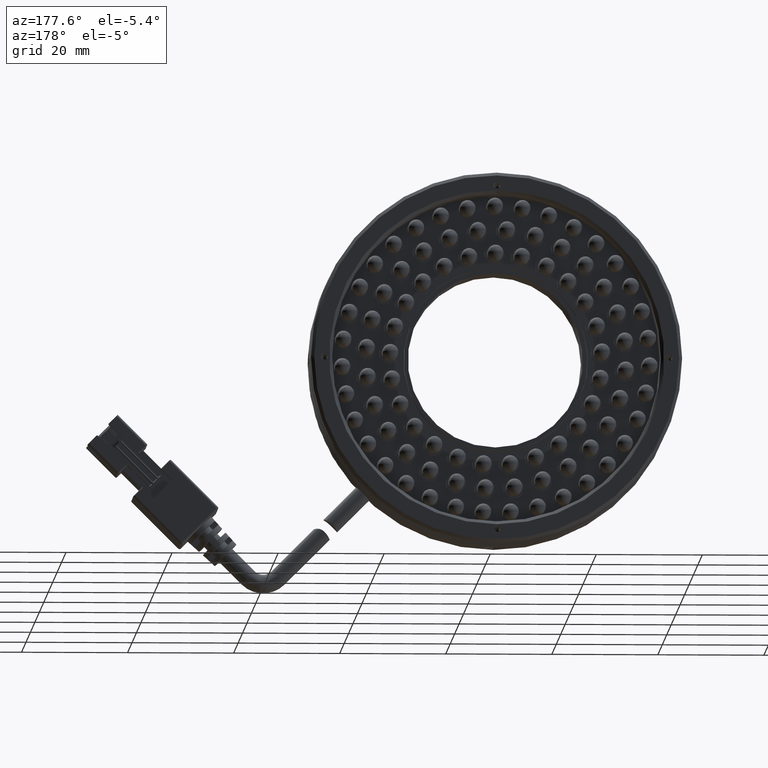
[diagram: clean part render]
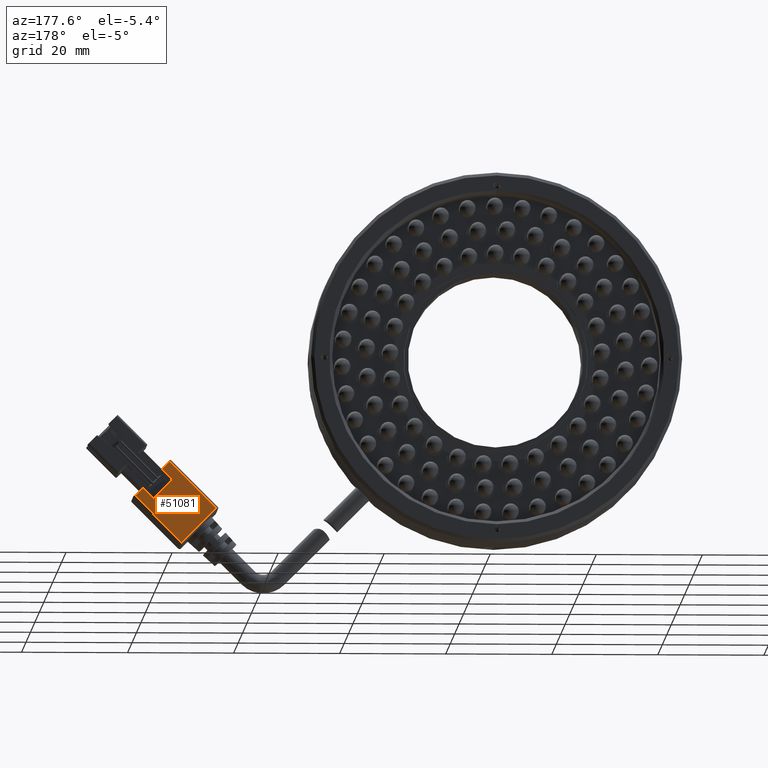
[diagram: same view with one face highlighted and labeled with its STEP entity id]
A machine part, auxiliary view. The second image highlights one B-rep face of the part: STEP entity #51081.
In plain terms, the highlighted planar face has unit normal (0, -1, -0).
Its self-contained STEP definition (entity closure, byte-faithful):
#382 = LINE ( 'NONE', #18112, #33420 ) ;
#582 = VERTEX_POINT ( 'NONE', #19854 ) ;
#726 = CARTESIAN_POINT ( 'NONE',  ( 36.52443995715705700, 3.220185881597989600, -19.02117241391842500 ) ) ;
#1010 = DIRECTION ( 'NONE',  ( 0.7071067811865441300, 7.979727989493312600E-017, -0.7071067811865510100 ) ) ;
#1335 = VECTOR ( 'NONE', #60427, 1000.000000000000000 ) ;
#2051 = VERTEX_POINT ( 'NONE', #73213 ) ;
#8024 = CARTESIAN_POINT ( 'NONE',  ( 41.54489810358152400, 3.220185881597990500, -24.04163056034294900 ) ) ;
#8418 = ORIENTED_EDGE ( 'NONE', *, *, #39313, .F. ) ;
#9503 = VECTOR ( 'NONE', #47048, 1000.000000000000000 ) ;
#10801 = CARTESIAN_POINT ( 'NONE',  ( 36.38301860091974000, 3.220185881597988700, -19.16259377015573800 ) ) ;
#12068 = VERTEX_POINT ( 'NONE', #42598 ) ;
#12358 = EDGE_CURVE ( 'NONE', #12804, #27408, #61760, .T. ) ;
#12804 = VERTEX_POINT ( 'NONE', #84755 ) ;
#13709 = ORIENTED_EDGE ( 'NONE', *, *, #70328, .T. ) ;
#16862 = DIRECTION ( 'NONE',  ( -0.7071067811865511300, 5.887846720064111600E-017, -0.7071067811865440200 ) ) ;
#18112 = CARTESIAN_POINT ( 'NONE',  ( 34.12027690112277900, 3.220185881597989600, -20.85965004500343800 ) ) ;
#18196 = ORIENTED_EDGE ( 'NONE', *, *, #80304, .F. ) ;
#19009 = CARTESIAN_POINT ( 'NONE',  ( 37.86794284141149100, 3.220185881597989600, -20.64751801064749900 ) ) ;
#19854 = CARTESIAN_POINT ( 'NONE',  ( 41.40347674734421400, 3.220185881597990500, -24.18305191658025800 ) ) ;
#20305 = VECTOR ( 'NONE', #1010, 1000.000000000000000 ) ;
#21993 = VERTEX_POINT ( 'NONE', #85061 ) ;
#22262 = DIRECTION ( 'NONE',  ( -0.7071067811865441300, -7.979727989493312600E-017, 0.7071067811865510100 ) ) ;
#22831 = DIRECTION ( 'NONE',  ( -0.7071067811865441300, -7.979727989493312600E-017, 0.7071067811865510100 ) ) ;
#23823 = ORIENTED_EDGE ( 'NONE', *, *, #36692, .F. ) ;
#27408 = VERTEX_POINT ( 'NONE', #51289 ) ;
#29837 = ORIENTED_EDGE ( 'NONE', *, *, #45914, .F. ) ;
#31215 = LINE ( 'NONE', #55358, #46473 ) ;
#31612 = CARTESIAN_POINT ( 'NONE',  ( 36.24159724468243100, 3.220185881597989600, -18.73832970144380300 ) ) ;
#33420 = VECTOR ( 'NONE', #37697, 1000.000000000000000 ) ;
#34644 = VECTOR ( 'NONE', #16862, 1000.000000000000000 ) ;
#36692 = EDGE_CURVE ( 'NONE', #2051, #12068, #382, .T. ) ;
#36766 = VECTOR ( 'NONE', #79280, 1000.000000000000000 ) ;
#37697 = DIRECTION ( 'NONE',  ( -0.7071067811865441300, -7.979727989493312600E-017, 0.7071067811865510100 ) ) ;
#37730 = EDGE_CURVE ( 'NONE', #21993, #12804, #55066, .T. ) ;
#38218 = DIRECTION ( 'NONE',  ( 0.7071067811865441300, 7.979727989493312600E-017, -0.7071067811865510100 ) ) ;
#39313 = EDGE_CURVE ( 'NONE', #82345, #21993, #75547, .T. ) ;
#40553 = CARTESIAN_POINT ( 'NONE',  ( 43.02982234407326000, 3.220185881597991400, -25.52655480083469200 ) ) ;
#41977 = FACE_OUTER_BOUND ( 'NONE', #71913, .T. ) ;
#42598 = CARTESIAN_POINT ( 'NONE',  ( 35.88804385408914800, 3.220185881597989600, -22.62741699796982100 ) ) ;
#45914 = EDGE_CURVE ( 'NONE', #27408, #582, #52771, .T. ) ;
#46473 = VECTOR ( 'NONE', #22831, 1000.000000000000000 ) ;
#47048 = DIRECTION ( 'NONE',  ( 0.7071067811865510100, -5.887846720064111600E-017, 0.7071067811865441300 ) ) ;
#48277 = CARTESIAN_POINT ( 'NONE',  ( 43.17124370031056900, 3.220185881597990500, -25.95081886954662700 ) ) ;
#50281 = VERTEX_POINT ( 'NONE', #19009 ) ;
#51081 = ADVANCED_FACE ( 'NONE', ( #41977 ), #83319, .F. ) ;
#51289 = CARTESIAN_POINT ( 'NONE',  ( 42.88840098783594400, 3.220185881597991400, -25.66797615707200500 ) ) ;
#52771 = LINE ( 'NONE', #48277, #77371 ) ;
#53504 = CARTESIAN_POINT ( 'NONE',  ( 27.33205180173189300, 3.220185881597991400, -27.64787514439426300 ) ) ;
#55066 = LINE ( 'NONE', #53504, #20305 ) ;
#55358 = CARTESIAN_POINT ( 'NONE',  ( 43.17124370031056900, 3.220185881597990500, -25.95081886954662700 ) ) ;
#56331 = CARTESIAN_POINT ( 'NONE',  ( 38.00936419764880700, 3.220185881597990500, -20.50609665441018600 ) ) ;
#60427 = DIRECTION ( 'NONE',  ( 0.7071067811865511300, -5.887846720064111600E-017, 0.7071067811865440200 ) ) ;
#61760 = LINE ( 'NONE', #40553, #9503 ) ;
#62799 = ORIENTED_EDGE ( 'NONE', *, *, #12358, .F. ) ;
#70328 = EDGE_CURVE ( 'NONE', #2051, #582, #71132, .T. ) ;
#71132 = LINE ( 'NONE', #8024, #1335 ) ;
#71913 = EDGE_LOOP ( 'NONE', ( #18196, #73860, #23823, #13709, #29837, #62799, #82593, #8418 ) ) ;
#73213 = CARTESIAN_POINT ( 'NONE',  ( 39.42357776002186400, 3.220185881597990500, -26.16295090390258000 ) ) ;
#73860 = ORIENTED_EDGE ( 'NONE', *, *, #74168, .T. ) ;
#74168 = EDGE_CURVE ( 'NONE', #50281, #12068, #84758, .T. ) ;
#75547 = LINE ( 'NONE', #726, #36766 ) ;
#77315 = DIRECTION ( 'NONE',  ( 1.479183431050463500E-017, -1.000000000000000000, -9.805856115739130200E-017 ) ) ;
#77371 = VECTOR ( 'NONE', #22262, 1000.000000000000000 ) ;
#79075 = AXIS2_PLACEMENT_3D ( 'NONE', #31612, #77315, #38218 ) ;
#79280 = DIRECTION ( 'NONE',  ( -0.7071067811865510100, 5.887846720064111600E-017, -0.7071067811865441300 ) ) ;
#80304 = EDGE_CURVE ( 'NONE', #50281, #82345, #31215, .T. ) ;
#82345 = VERTEX_POINT ( 'NONE', #10801 ) ;
#82593 = ORIENTED_EDGE ( 'NONE', *, *, #37730, .F. ) ;
#83319 = PLANE ( 'NONE',  #79075 ) ;
#84755 = CARTESIAN_POINT ( 'NONE',  ( 34.12027690112271500, 3.220185881597992200, -34.43610024378514800 ) ) ;
#84758 = LINE ( 'NONE', #56331, #34644 ) ;
#85061 = CARTESIAN_POINT ( 'NONE',  ( 27.61489451420651200, 3.220185881597990500, -27.93071785686888100 ) ) ;